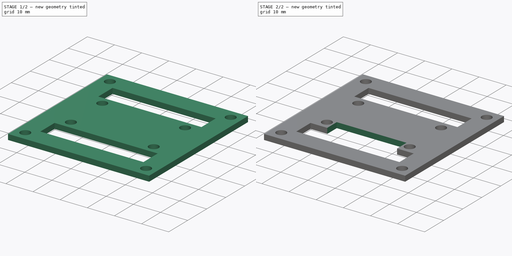
[diagram: build sequence overview — one tinted view per stage of 2, left to right]
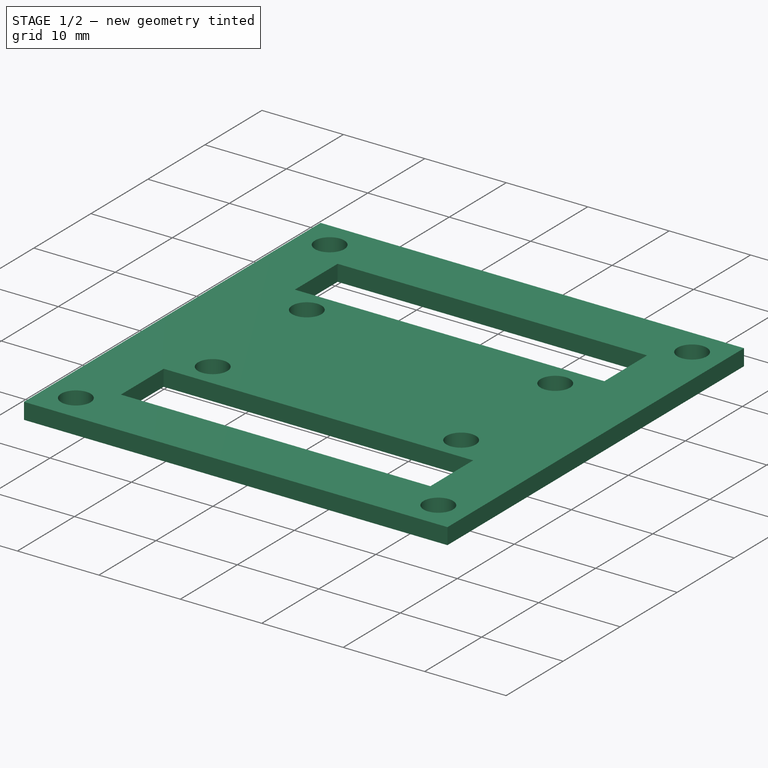
[diagram: stage 1 of 2 — iso view after this stage's code; geometry added in this stage tinted green]
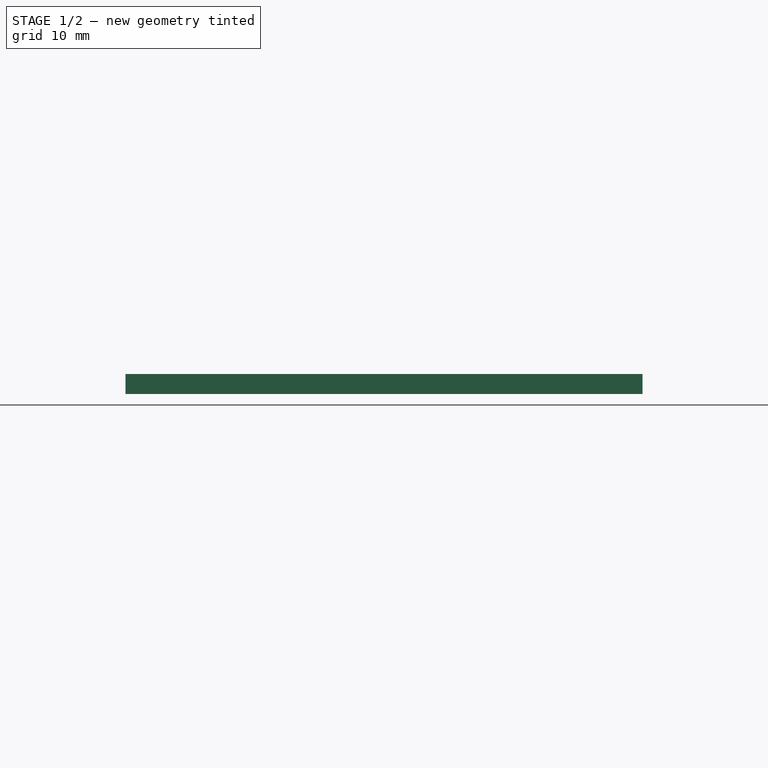
[diagram: stage 1 of 2 — front view after this stage's code; geometry added in this stage tinted green]
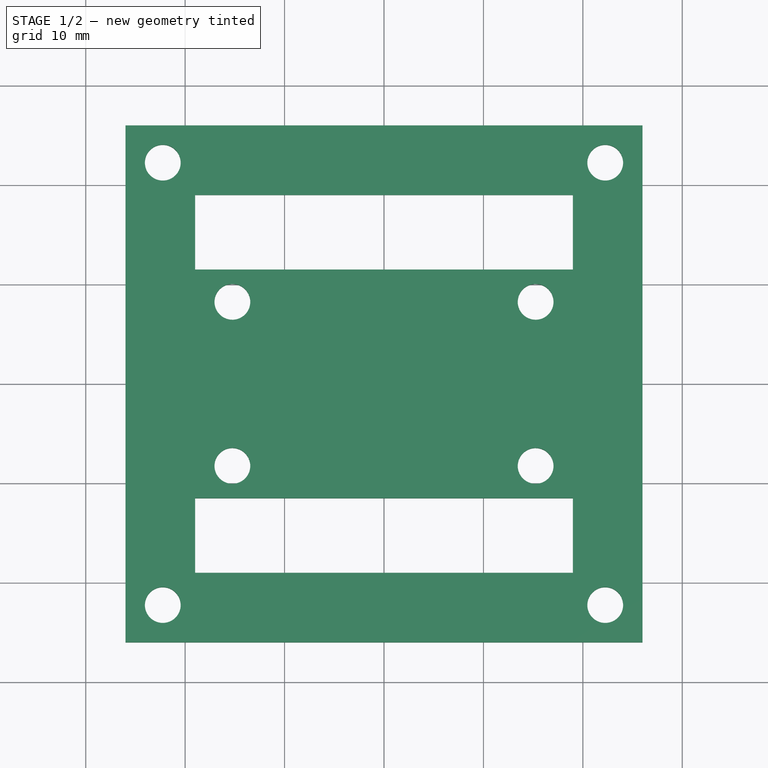
[diagram: stage 1 of 2 — top view after this stage's code; geometry added in this stage tinted green]
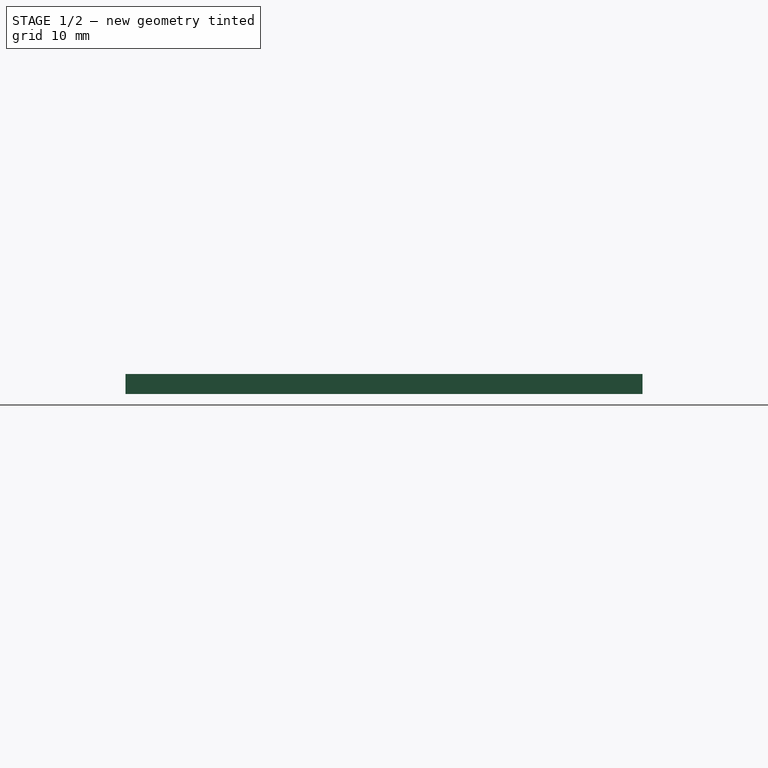
[diagram: stage 1 of 2 — right view after this stage's code; geometry added in this stage tinted green]
FCSTD DOCUMENT  (FreeCAD 0.14R3700 (Git))
Label: Base_Centeral_Bracket
License: CC-BY 3.0
LicenseURL: http://creativecommons.org/licenses/by/3.0/
objects: Sketcher::SketchObject×2, PartDesign::Pad×1, PartDesign::Pocket×1
note: 6 computed .brp shape members not serialized (recipe doc carries the construction recipe); baked Part::Feature solids carry a one-line shape summary decoded from their .brp

FEATURE [Sketcher::SketchObject] Sketch
  sketch-geometry (20):
    g0: LineSegment StartX=-26 StartY=26 StartZ=0 EndX=26 EndY=26 EndZ=0
    g1: LineSegment StartX=26 StartY=26 StartZ=0 EndX=26 EndY=-26 EndZ=0
    g2: LineSegment StartX=26 StartY=-26 StartZ=0 EndX=-26 EndY=-26 EndZ=0
    g3: LineSegment StartX=-26 StartY=-26 StartZ=0 EndX=-26 EndY=26 EndZ=0
    g4: LineSegment StartX=-19 StartY=19 StartZ=0 EndX=19 EndY=19 EndZ=0
    g5: LineSegment StartX=19 StartY=19 StartZ=0 EndX=19 EndY=11.5 EndZ=0
    g6: LineSegment StartX=19 StartY=-19 StartZ=0 EndX=-19 EndY=-19 EndZ=0
    g7: LineSegment StartX=-19 StartY=-19 StartZ=0 EndX=-19 EndY=-11.5 EndZ=0
    g8: Circle CenterX=22.25 CenterY=22.25 CenterZ=0 NormalX=0 NormalY=0 NormalZ=1 Radius=1.8
    g9: Circle CenterX=22.25 CenterY=-22.25 CenterZ=0 NormalX=0 NormalY=0 NormalZ=1 Radius=1.8
    g10: Circle CenterX=-22.25 CenterY=22.25 CenterZ=0 NormalX=0 NormalY=0 NormalZ=1 Radius=1.8
    g11: Circle CenterX=-22.25 CenterY=-22.25 CenterZ=0 NormalX=0 NormalY=0 NormalZ=1 Radius=1.8
    g12: LineSegment StartX=-19 StartY=11.5 StartZ=0 EndX=19 EndY=11.5 EndZ=0
    g13: LineSegment StartX=19 StartY=-11.5 StartZ=0 EndX=-19 EndY=-11.5 EndZ=0
    g14: LineSegment StartX=-19 StartY=11.5 StartZ=0 EndX=-19 EndY=19 EndZ=0
    g15: LineSegment StartX=19 StartY=-11.5 StartZ=0 EndX=19 EndY=-19 EndZ=0
    g16: Circle CenterX=15.25 CenterY=8.25 CenterZ=0 NormalX=0 NormalY=0 NormalZ=1 Radius=1.8
    g17: Circle CenterX=-15.25 CenterY=8.25 CenterZ=0 NormalX=0 NormalY=0 NormalZ=1 Radius=1.8
    g18: Circle CenterX=-15.25 CenterY=-8.25 CenterZ=0 NormalX=0 NormalY=0 NormalZ=1 Radius=1.8
    g19: Circle CenterX=15.25 CenterY=-8.25 CenterZ=0 NormalX=0 NormalY=0 NormalZ=1 Radius=1.8
  constraints (64):
    c: Coincident(g0,g1)
    c: Coincident(g1,g2)
    c: Coincident(g2,g3)
    c: Coincident(g3,g0)
    c: Horizontal(g0)
    c: Horizontal(g2)
    c: Vertical(g1)
    c: Vertical(g3)
    c: Equal(g3,g0)
    c: Equal(g0,g1)
    c: Equal(g2,g1)
    c: DistanceX(g0,g0) = 52
    c: DistanceY(g-1,g0) = 26
    c: DistanceX(g-1,g0) = -26
    c: Coincident(g4,g5)
    c: Coincident(g15,g6)
    c: Coincident(g6,g7)
    c: Coincident(g14,g4)
    c: Horizontal(g4)
    c: Horizontal(g6)
    c: Vertical(g5)
    c: Vertical(g7)
    c: DistanceX(g15,g1) = 7
    c: DistanceY(g15,g1) = -7
    c: DistanceX(g2,g6) = 7
    c: DistanceY(g4,g0) = 7
    c: Radius(g11) = 1.8
    c: Radius(g10) = 1.8
    c: Radius(g8) = 1.8
    c: Radius(g9) = 1.8
    c: DistanceX(g11,g2) = -3.75
    c: DistanceY(g2,g11) = 3.75
    c: DistanceX(g0,g10) = 3.75
    c: DistanceY(g0,g10) = -3.75
    c: DistanceX(g8,g0) = 3.75
    c: DistanceY(g8,g0) = 3.75
    c: DistanceX(g1,g9) = -3.75
    c: DistanceY(g1,g9) = 3.75
    c: Horizontal(g12)
    c: Horizontal(g13)
    c: DistanceY(g12,g13) = -23
    c: DistanceY(g-1,g12) = 11.5
    c: PointOnObject(g7,g13)
    c: PointOnObject(g14,g12)
    c: Tangent(g7,g14)
    c: PointOnObject(g5,g12)
    c: PointOnObject(g15,g13)
    c: Tangent(g5,g15)
    c: Coincident(g7,g13)
    c: Coincident(g13,g15)
    c: Coincident(g12,g14)
    c: Coincident(g5,g12)
    c: Radius(g16) = 1.8
    c: DistanceY(g5,g16) = -3.25
    c: DistanceX(g0,g16) = -10.75
    c: Radius(g17) = 1.8
    c: DistanceY(g12,g17) = -3.25
    c: DistanceX(g0,g17) = 10.75
    c: Radius(g19) = 1.8
    c: DistanceY(g19,g13) = -3.25
    c: DistanceX(g19,g1) = 10.75
    c: Radius(g18) = 1.8
    c: DistanceY(g7,g18) = 3.25
    c: DistanceX(g2,g18) = 10.75
FEATURE [PartDesign::Pad] Pad
  Length = 2
  Length2 = 20
  Sketch = -> Sketch
  Type = 0
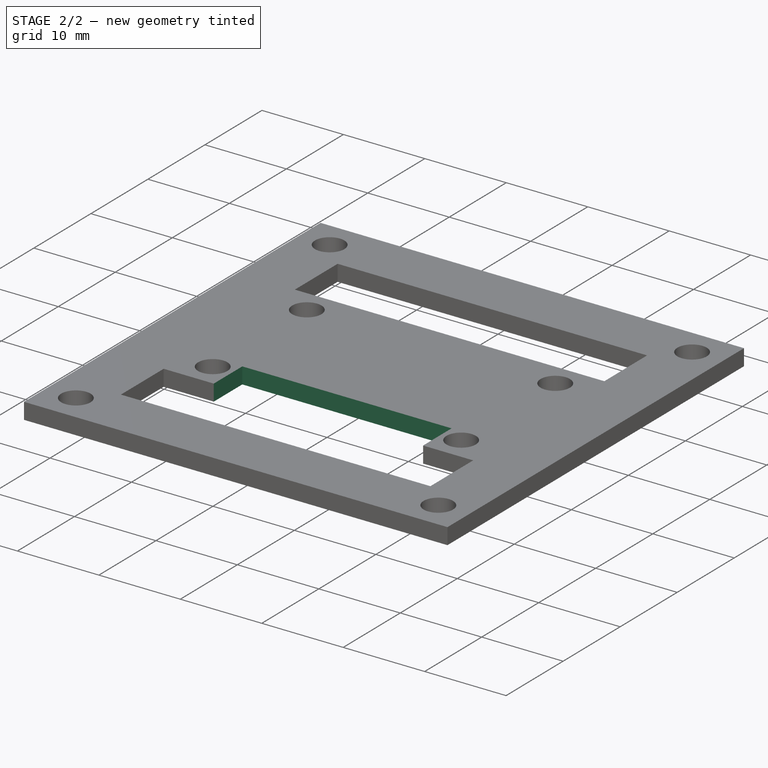
[diagram: stage 2 of 2 — iso view after this stage's code; geometry added in this stage tinted green]
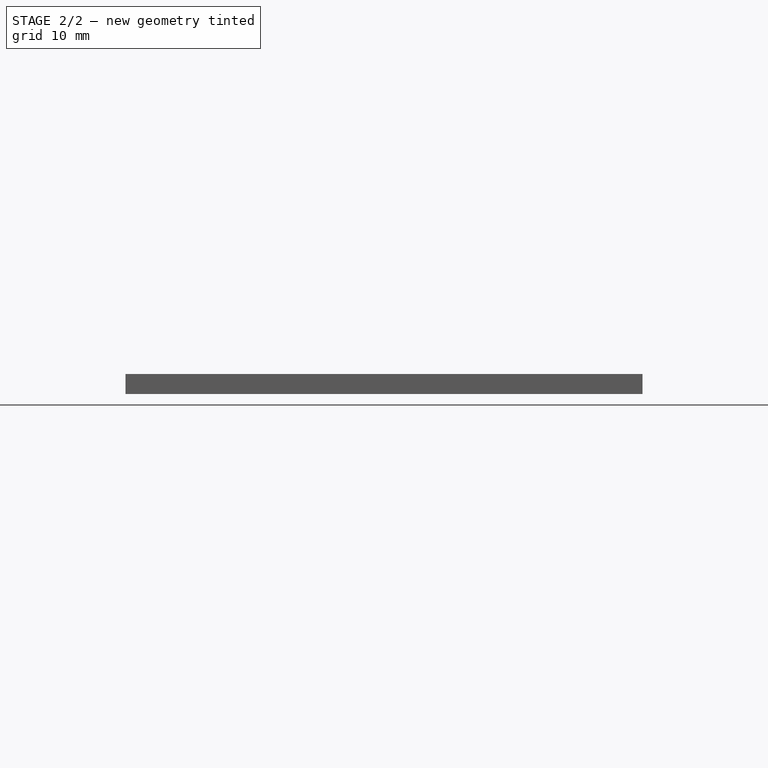
[diagram: stage 2 of 2 — front view after this stage's code; geometry added in this stage tinted green]
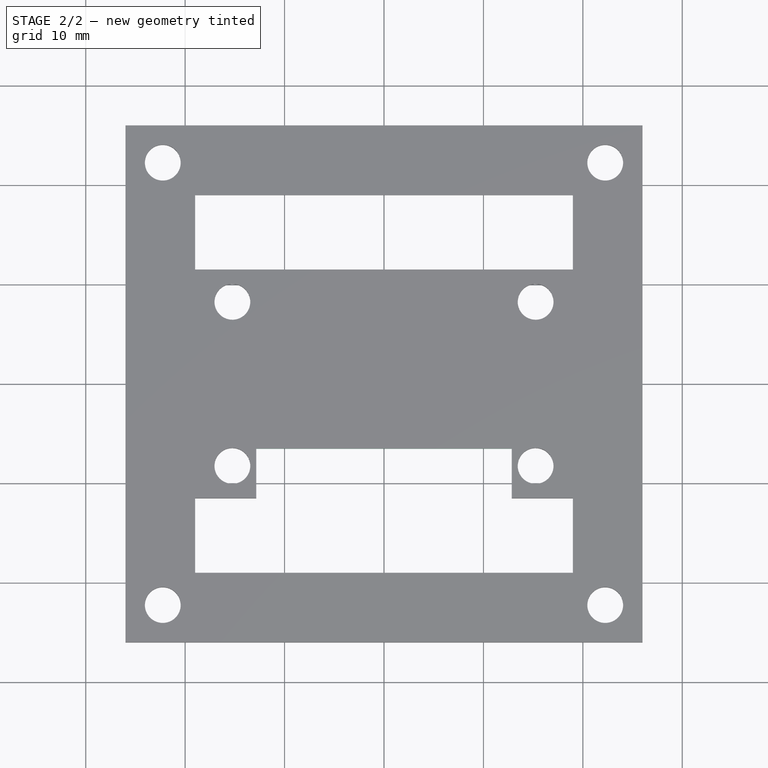
[diagram: stage 2 of 2 — top view after this stage's code; geometry added in this stage tinted green]
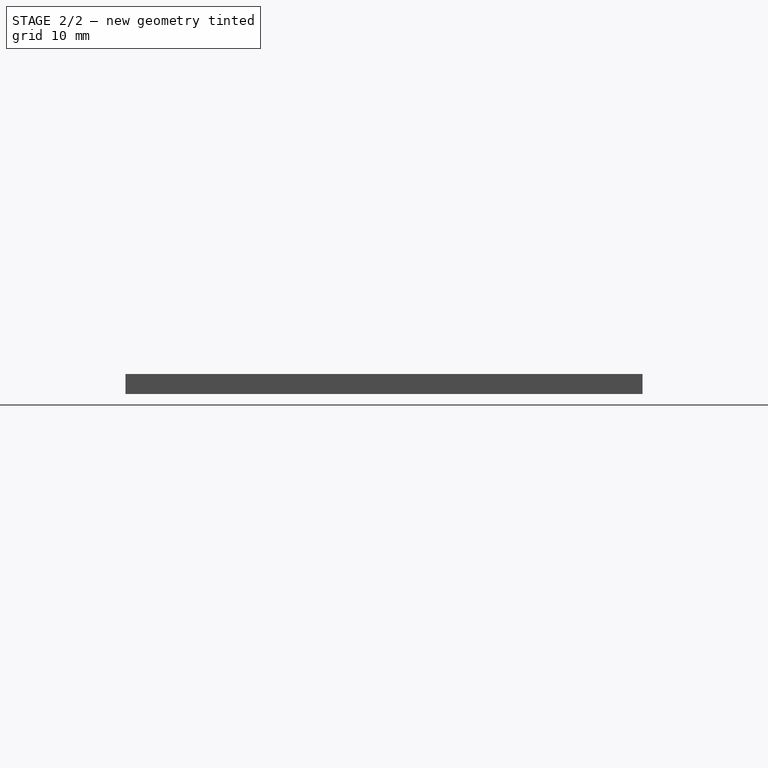
[diagram: stage 2 of 2 — right view after this stage's code; geometry added in this stage tinted green]
FEATURE [Sketcher::SketchObject] Sketch001
  ExternalGeometry = -> [Pad]
  Placement = pos=(0,0,2) rot=(0,0,1;0rad)
  Support = -> Pad [Face22]
  sketch-geometry (4):
    g0: LineSegment StartX=-12.85 StartY=-14.5 StartZ=0 EndX=-12.85 EndY=-6.5 EndZ=0
    g1: LineSegment StartX=-12.85 StartY=-6.5 StartZ=0 EndX=12.85 EndY=-6.5 EndZ=0
    g2: LineSegment StartX=12.85 StartY=-6.5 StartZ=0 EndX=12.85 EndY=-14.5 EndZ=0
    g3: LineSegment StartX=-12.85 StartY=-14.5 StartZ=0 EndX=12.85 EndY=-14.5 EndZ=0
  constraints (12):
    c: DistanceX(g0,g1) = 25.7
    c: DistanceX(g-1,g0) = -12.85
    c: DistanceY(g0,g-3) = -5
    c: Vertical(g0)
    c: Horizontal(g1)
    c: Vertical(g2)
    c: Horizontal(g3)
    c: Coincident(g0,g3)
    c: Coincident(g1,g2)
    c: Coincident(g2,g3)
    c: Coincident(g0,g1)
    c: DistanceY(g0,g-3) = 3
FEATURE [PartDesign::Pocket] Pocket
  Length = 5
  Sketch = -> Sketch001
  Type = 0
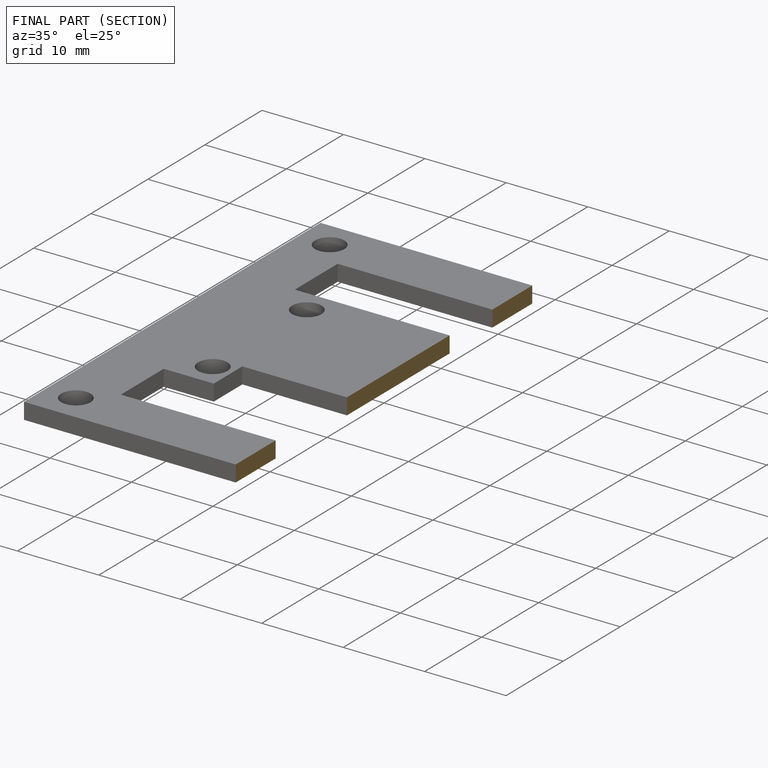
[diagram: finished part — half-section view (interior)]
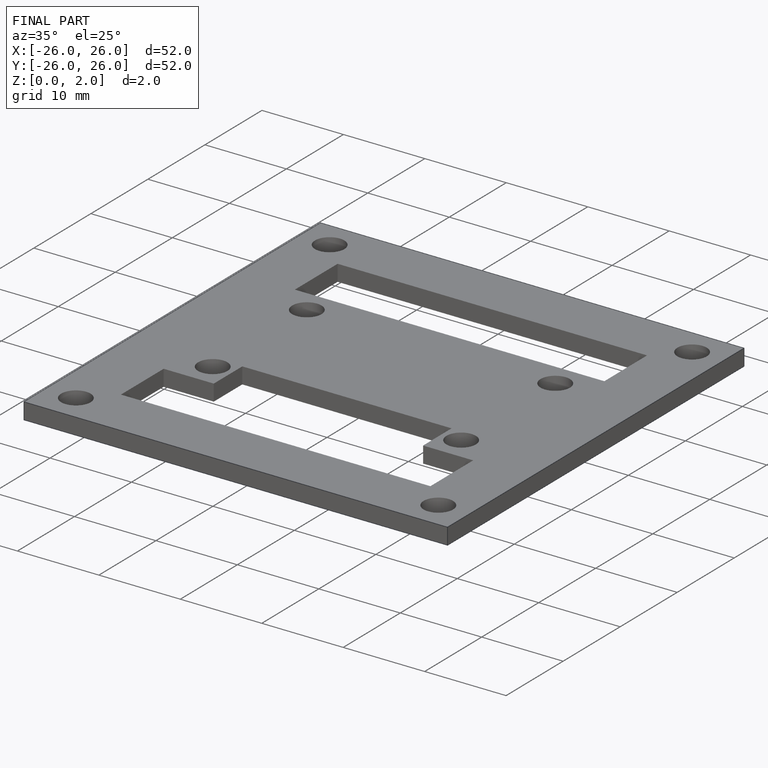
[diagram: finished part — iso view with bounding-box wireframe]
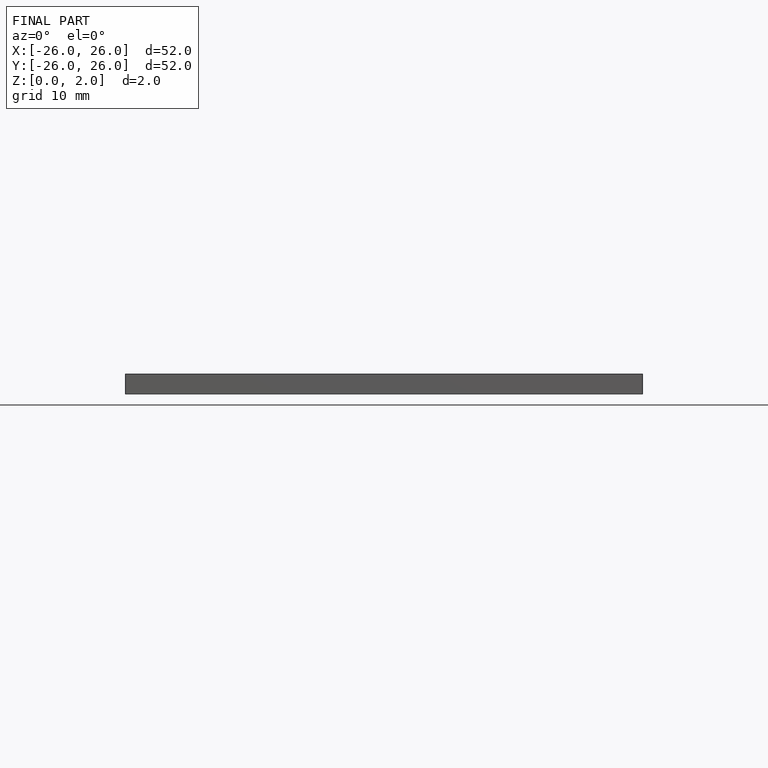
[diagram: finished part — front view with bounding-box wireframe]
